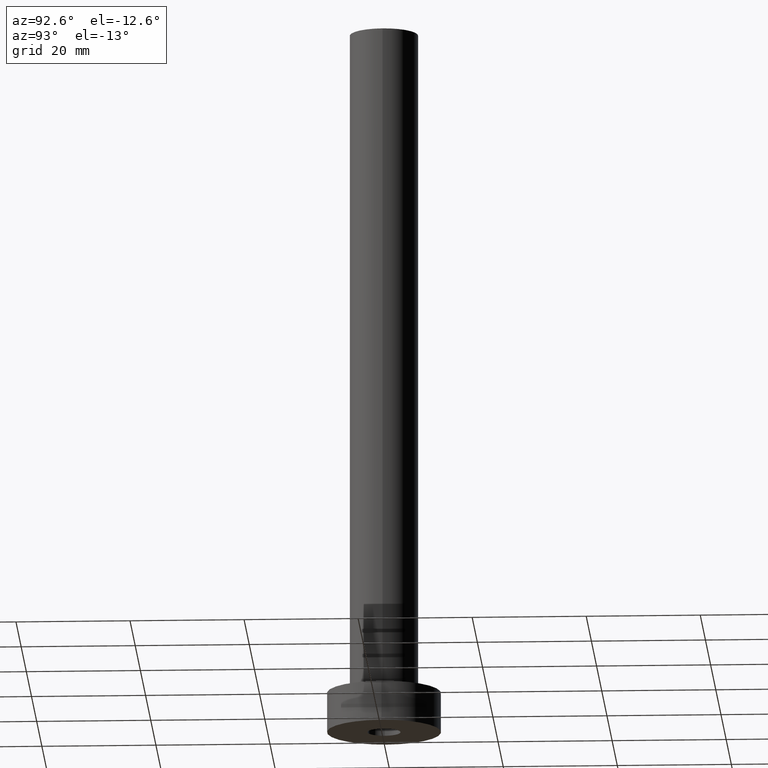
[diagram: clean part render]
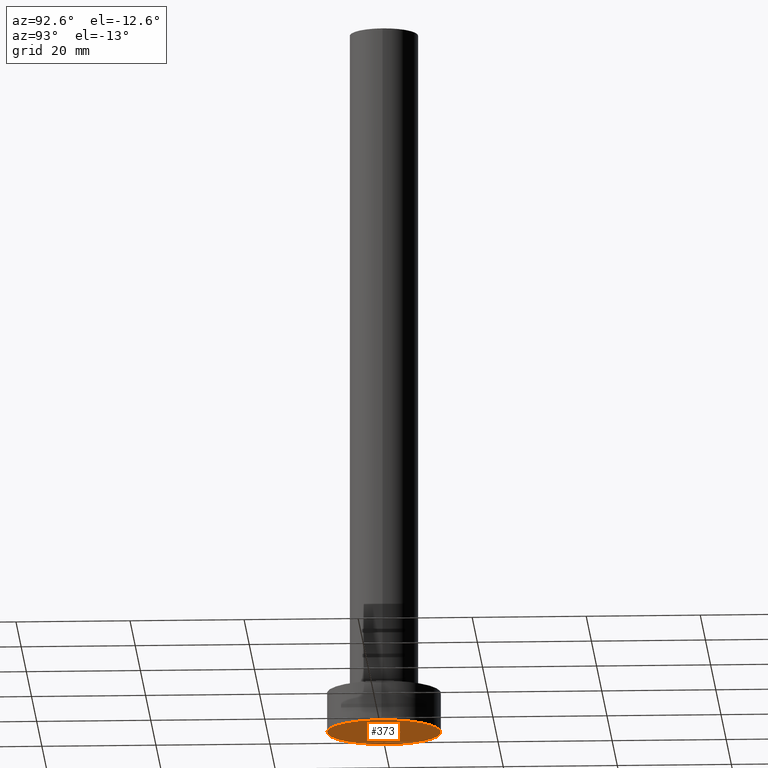
[diagram: same view with one face highlighted and labeled with its STEP entity id]
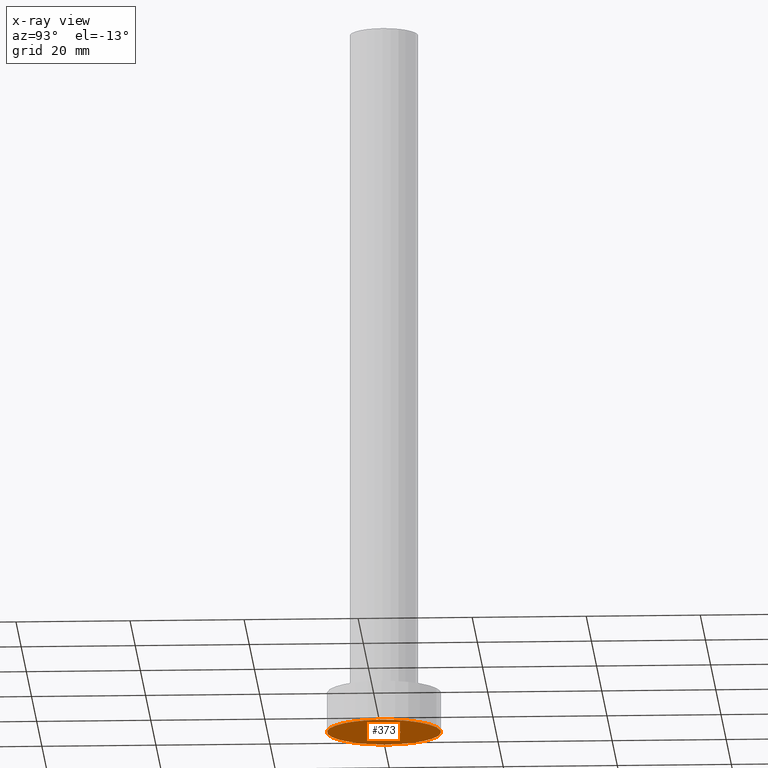
[diagram: x-ray of the same camera — body ghosted, the highlighted face saturated]
A machine part, auxiliary view. The second image highlights one B-rep face of the part: STEP entity #373.
The next image is the same camera in x-ray: the body ghosted, the highlighted face saturated — about 0% of this face is hidden behind the body in this view.
In plain terms, the highlighted planar face has unit normal (0, 0, 1).
Its self-contained STEP definition (entity closure, byte-faithful):
#23 = CARTESIAN_POINT ( 'NONE',  ( 0.000000000000000000, 0.000000000000000000, 0.000000000000000000 ) ) ;
#33 = DIRECTION ( 'NONE',  ( 1.000000000000000000, 0.000000000000000000, 0.000000000000000000 ) ) ;
#37 = FACE_OUTER_BOUND ( 'NONE', #370, .T. ) ;
#52 = EDGE_CURVE ( 'NONE', #406, #65, #105, .T. ) ;
#61 = ORIENTED_EDGE ( 'NONE', *, *, #385, .F. ) ;
#63 = AXIS2_PLACEMENT_3D ( 'NONE', #414, #169, #204 ) ;
#65 = VERTEX_POINT ( 'NONE', #254 ) ;
#77 = EDGE_LOOP ( 'NONE', ( #310, #212 ) ) ;
#105 = CIRCLE ( 'NONE', #63, 2.899999999999999911 ) ;
#110 = CARTESIAN_POINT ( 'NONE',  ( 0.000000000000000000, 0.000000000000000000, 0.000000000000000000 ) ) ;
#116 = EDGE_CURVE ( 'NONE', #65, #406, #124, .T. ) ;
#124 = CIRCLE ( 'NONE', #143, 2.899999999999999911 ) ;
#138 = PLANE ( 'NONE',  #268 ) ;
#143 = AXIS2_PLACEMENT_3D ( 'NONE', #23, #307, #276 ) ;
#169 = DIRECTION ( 'NONE',  ( -0.000000000000000000, -0.000000000000000000, -1.000000000000000000 ) ) ;
#182 = DIRECTION ( 'NONE',  ( 1.000000000000000000, 0.000000000000000000, -0.000000000000000000 ) ) ;
#184 = DIRECTION ( 'NONE',  ( 0.000000000000000000, 0.000000000000000000, 1.000000000000000000 ) ) ;
#204 = DIRECTION ( 'NONE',  ( 1.000000000000000000, 0.000000000000000000, 0.000000000000000000 ) ) ;
#212 = ORIENTED_EDGE ( 'NONE', *, *, #52, .F. ) ;
#238 = CIRCLE ( 'NONE', #435, 10.00000000000000000 ) ;
#243 = VERTEX_POINT ( 'NONE', #270 ) ;
#254 = CARTESIAN_POINT ( 'NONE',  ( -2.899999999999999911, 0.000000000000000000, 0.000000000000000000 ) ) ;
#256 = DIRECTION ( 'NONE',  ( 0.000000000000000000, 0.000000000000000000, 1.000000000000000000 ) ) ;
#258 = DIRECTION ( 'NONE',  ( 0.000000000000000000, 0.000000000000000000, 1.000000000000000000 ) ) ;
#268 = AXIS2_PLACEMENT_3D ( 'NONE', #110, #184, #182 ) ;
#270 = CARTESIAN_POINT ( 'NONE',  ( -10.00000000000000000, 0.000000000000000000, 0.000000000000000000 ) ) ;
#276 = DIRECTION ( 'NONE',  ( 1.000000000000000000, 0.000000000000000000, 0.000000000000000000 ) ) ;
#278 = CARTESIAN_POINT ( 'NONE',  ( 10.00000000000000000, 1.224646799147353256E-15, 0.000000000000000000 ) ) ;
#287 = CARTESIAN_POINT ( 'NONE',  ( 2.899999999999999911, 3.551475717527323832E-16, 0.000000000000000000 ) ) ;
#304 = ORIENTED_EDGE ( 'NONE', *, *, #450, .F. ) ;
#307 = DIRECTION ( 'NONE',  ( -0.000000000000000000, -0.000000000000000000, -1.000000000000000000 ) ) ;
#310 = ORIENTED_EDGE ( 'NONE', *, *, #116, .F. ) ;
#321 = CARTESIAN_POINT ( 'NONE',  ( 0.000000000000000000, 0.000000000000000000, 0.000000000000000000 ) ) ;
#354 = CIRCLE ( 'NONE', #390, 10.00000000000000000 ) ;
#356 = CARTESIAN_POINT ( 'NONE',  ( 0.000000000000000000, 0.000000000000000000, 0.000000000000000000 ) ) ;
#357 = VERTEX_POINT ( 'NONE', #278 ) ;
#361 = FACE_BOUND ( 'NONE', #77, .T. ) ;
#370 = EDGE_LOOP ( 'NONE', ( #304, #61 ) ) ;
#373 = ADVANCED_FACE ( 'NONE', ( #361, #37 ), #138, .F. ) ;
#385 = EDGE_CURVE ( 'NONE', #357, #243, #238, .T. ) ;
#390 = AXIS2_PLACEMENT_3D ( 'NONE', #356, #256, #402 ) ;
#402 = DIRECTION ( 'NONE',  ( 1.000000000000000000, 0.000000000000000000, 0.000000000000000000 ) ) ;
#406 = VERTEX_POINT ( 'NONE', #287 ) ;
#414 = CARTESIAN_POINT ( 'NONE',  ( 0.000000000000000000, 0.000000000000000000, 0.000000000000000000 ) ) ;
#435 = AXIS2_PLACEMENT_3D ( 'NONE', #321, #258, #33 ) ;
#450 = EDGE_CURVE ( 'NONE', #243, #357, #354, .T. ) ;